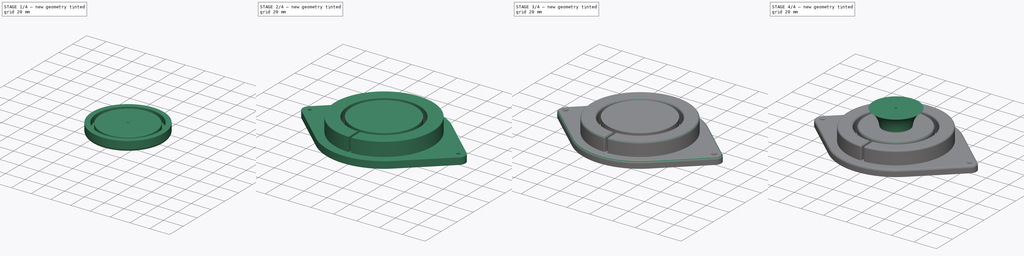
[diagram: build sequence overview — one tinted view per stage of 4, left to right]
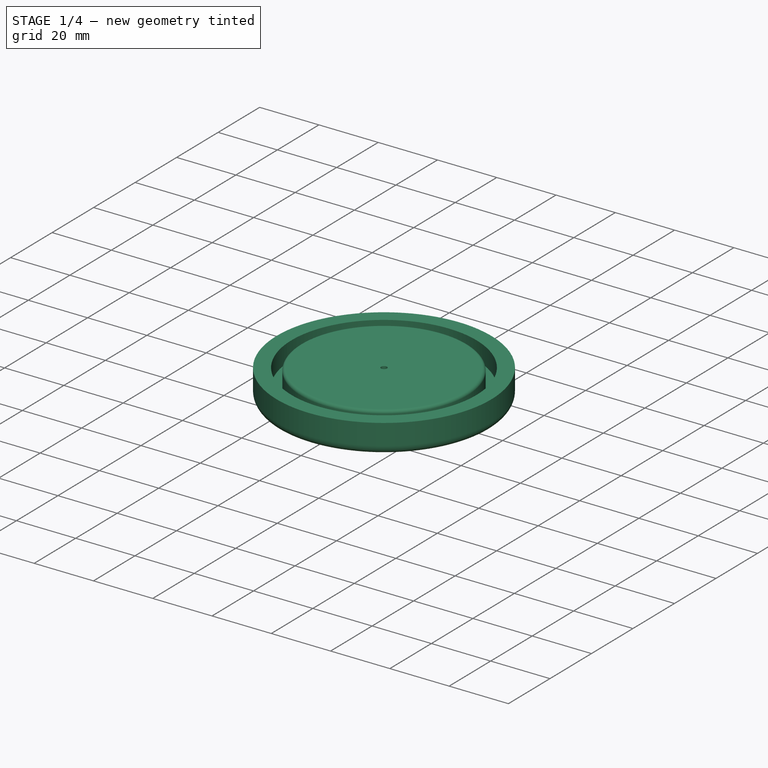
[diagram: stage 1 of 4 — iso view after this stage's code; geometry added in this stage tinted green]
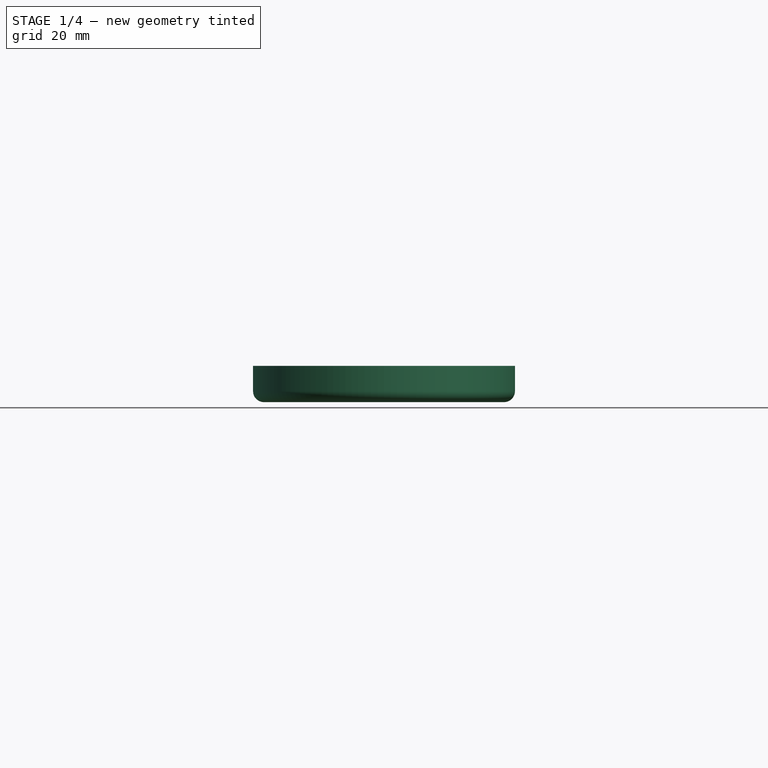
[diagram: stage 1 of 4 — front view after this stage's code; geometry added in this stage tinted green]
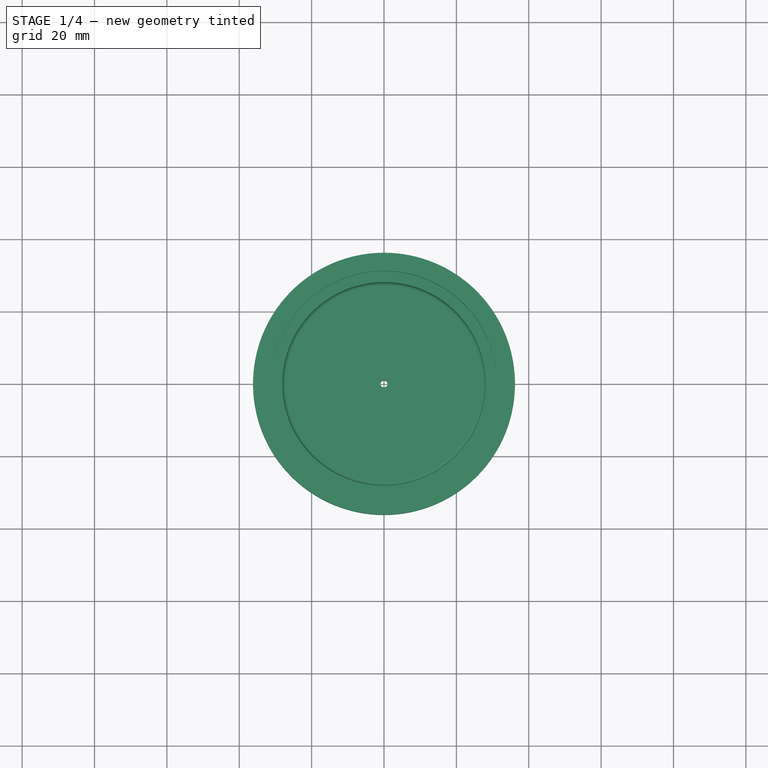
[diagram: stage 1 of 4 — top view after this stage's code; geometry added in this stage tinted green]
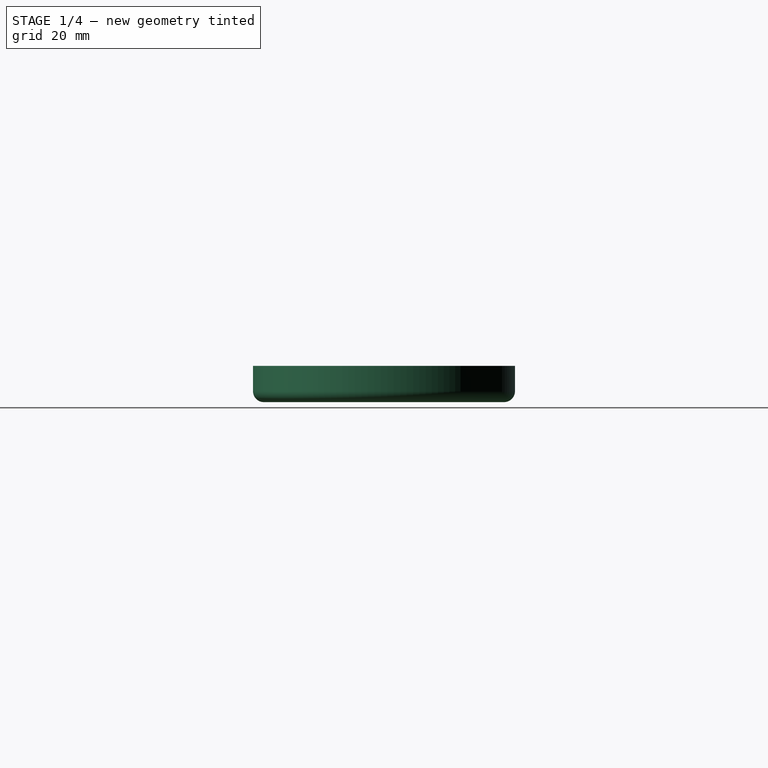
[diagram: stage 1 of 4 — right view after this stage's code; geometry added in this stage tinted green]
FCSTD DOCUMENT  (FreeCAD 1.0RUnknown)
Label: drsstc-I
License: All rights reserved
LicenseURL: https://en.wikipedia.org/wiki/All_rights_reserved
objects: Sketcher::SketchObject×5, PartDesign::Fillet×5, PartDesign::Body×3, PartDesign::Pad×2, PartDesign::Revolution×2, PartDesign::Hole×2, Spreadsheet::Sheet×1, PartDesign::Pocket×1, PartDesign::Chamfer×1
note: 52 computed .brp shape members not serialized (recipe doc carries the construction recipe); baked Part::Feature solids carry a one-line shape summary decoded from their .brp

FEATURE [Sketcher::SketchObject] Sketch003
  ArcFitTolerance = 1e-06
  AttachmentSupport = -> [YZ_Plane001]
  FullyConstrained = true
  MakeInternals = false
  MapMode = 5
  Placement = pos=(0,0,0) rot=(0.57735,0.57735,0.57735;2.0944rad)
  expr: Constraints[14] = Spreadsheet.secondary_thickness
  expr: Constraints[15] = Spreadsheet.secondary_inner_diameter / 2
  sketch-geometry (10):
    g0: LineSegment StartX=0 StartY=0 StartZ=0 EndX=33.2 EndY=3.268e-13 EndZ=0
    g1: LineSegment StartX=0 StartY=0 StartZ=0 EndX=0 EndY=10 EndZ=0
    g2: LineSegment StartX=0 StartY=10 StartZ=0 EndX=28.1 EndY=10 EndZ=0
    g3: LineSegment StartX=28.1 StartY=10 StartZ=0 EndX=28.1 EndY=4 EndZ=0
    g4: LineSegment StartX=28.1 StartY=4 StartZ=0 EndX=31.2 EndY=4 EndZ=0
    g5: LineSegment StartX=31.2 StartY=4 StartZ=0 EndX=31.2 EndY=10 EndZ=0
    g6: LineSegment StartX=31.2 StartY=10 StartZ=0 EndX=36.2 EndY=10 EndZ=0
    g7: LineSegment StartX=36.2 StartY=10 StartZ=0 EndX=36.2 EndY=3 EndZ=0
    g8: ArcOfCircle CenterX=33.2 CenterY=3 CenterZ=0 NormalX=0 NormalY=0 NormalZ=1 AngleXU=0 Radius=3 StartAngle=4.71239 EndAngle=6.28319
    g9: GeomPoint [constr] X=36.2 Y=0 Z=0
  constraints (27):
    c: Coincident(g0,g-1)
    c: PointOnObject(g9,g-1)
    c: Coincident(g1,g0)
    c: Vertical(g1)
    c: Coincident(g2,g1)
    c: Horizontal(g2)
    c: Coincident(g3,g2)
    c: Vertical(g3)
    c: Coincident(g4,g3)
    c: Horizontal(g4)
    c: Coincident(g5,g4)
    c: Vertical(g5)
    c: Horizontal(g6)
    c: Vertical(g7)
    c: Distance(g4,g4) = 3.1
    c: DistanceX(g2,g2) = 28.1
    c: Coincident(g5,g6)
    c: DistanceX(g6,g6) = 5
    c: Coincident(g6,g7)
    c: DistanceY(g1,g1) = 10
    c: DistanceY(g3,g3) = 6
    c: PointOnObject(g9,g0)
    c: PointOnObject(g9,g7)
    c: Tangent(g0,g8) = -1.5708
    c: Tangent(g7,g8) = 1.5708
    c: Radius(g8) = 3
    c: DistanceY(g9,g6) = 10
FEATURE [PartDesign::Revolution] Revolution
  Angle = 360
  Angle2 = 60
  Axis = (0,0,1)
  Base = (0,0,0)
  Placement = pos=(0,0,0) rot=(1,1,1;2.0944rad)
  Profile = -> Sketch003
  ReferenceAxis = -> Sketch003 [V_Axis]
  Refine = true
  Reversed = true
  Suppressed = false
  Type = 0
FEATURE [PartDesign::Hole] Hole
  BaseFeature = -> Revolution
  CustomThreadClearance = 0
  Depth = 208.125
  DepthType = 1
  Diameter = 2
  DrillForDepth = false
  DrillPoint = 1
  DrillPointAngle = 118
  HoleCutCountersinkAngle = 90
  HoleCutCustomValues = false
  HoleCutDepth = 0
  HoleCutDiameter = 6.1
  HoleCutType = 0
  ModelThread = false
  Placement = pos=(0,0,0) rot=(1,1,1;2.0944rad)
  Profile = -> Revolution [Face1]
  Refine = true
  Suppressed = false
  Tapered = false
  TaperedAngle = 90
  ThreadClass = 0
  ThreadDepth = 208.125
  ThreadDepthType = 0
  ThreadDirection = 0
  ThreadFit = 0
  ThreadSize = 0
  ThreadType = 0
  Threaded = false
  UseCustomThreadClearance = false
FEATURE [PartDesign::Body] Body  label="Base"
  AllowCompound = false
  Group = -> [Sketch,Pad,Sketch001,Pad001,Sketch002,Pocket,Chamfer,Fillet,Fillet001,Fillet002,Fillet003]
  Origin = -> Origin
  Tip = -> Fillet003
FEATURE [PartDesign::Fillet] Fillet004
  Base = -> Hole [Edge9]
  BaseFeature = -> Hole
  Placement = pos=(0,0,0) rot=(1,1,1;2.0944rad)
  Radius = 1
  Refine = true
  SupportTransform = false
  Suppressed = false
  UseAllEdges = false
FEATURE [PartDesign::Body] Body001  label="Cap"
  AllowCompound = false
  Group = -> [Sketch003,Revolution,Hole,Fillet004]
  Origin = -> Origin001
  Tip = -> Fillet004
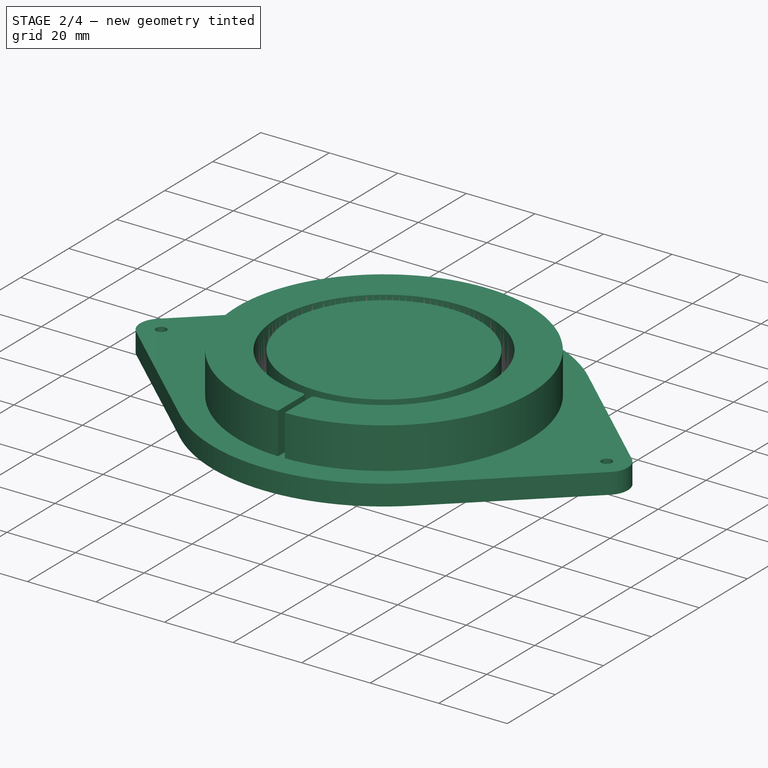
[diagram: stage 2 of 4 — iso view after this stage's code; geometry added in this stage tinted green]
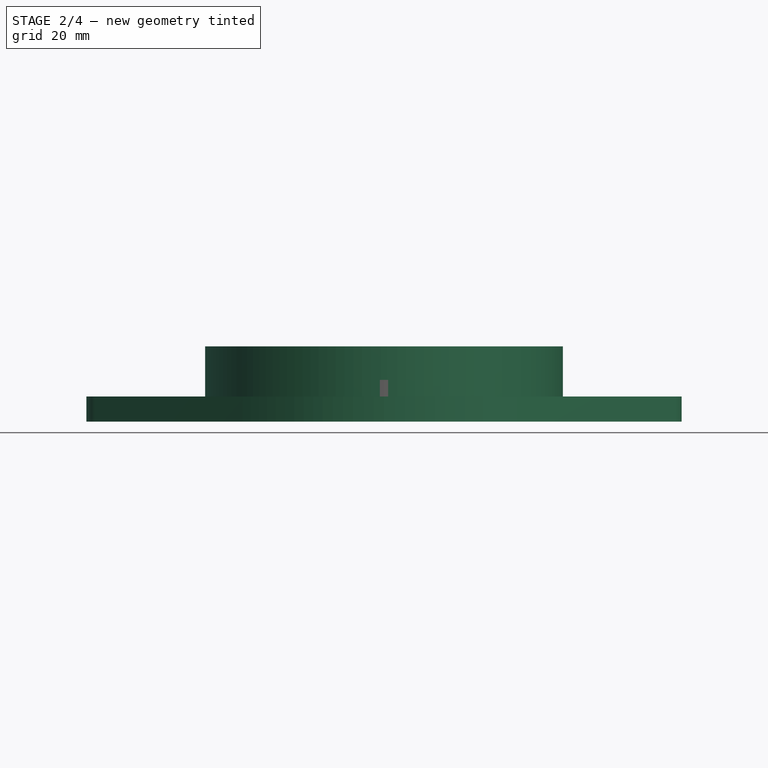
[diagram: stage 2 of 4 — front view after this stage's code; geometry added in this stage tinted green]
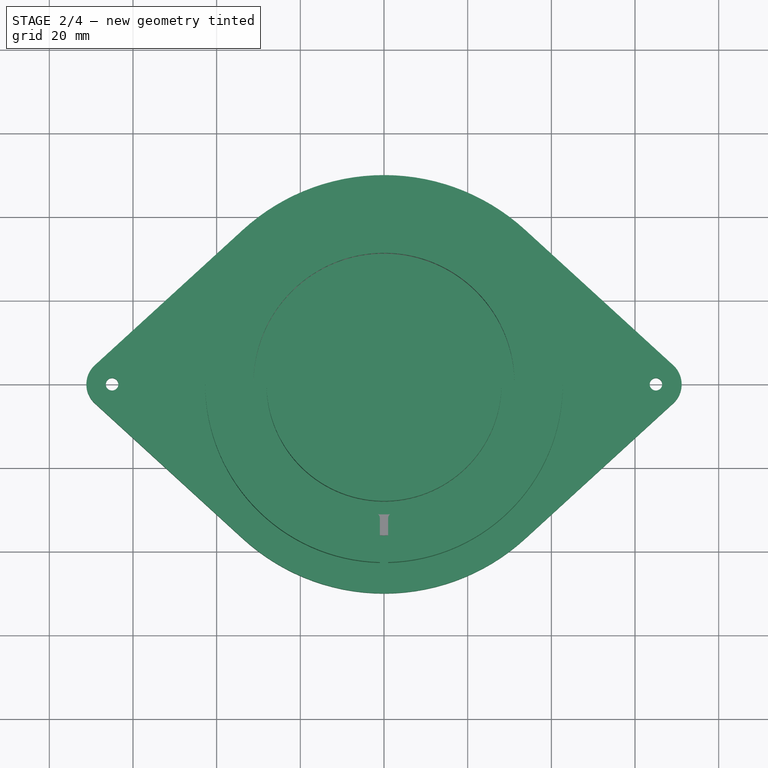
[diagram: stage 2 of 4 — top view after this stage's code; geometry added in this stage tinted green]
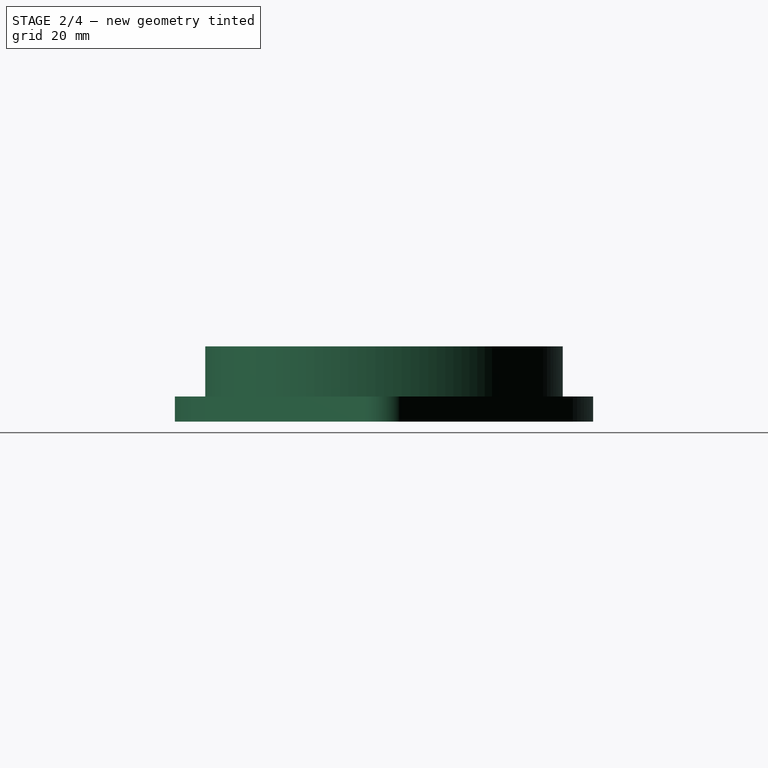
[diagram: stage 2 of 4 — right view after this stage's code; geometry added in this stage tinted green]
FEATURE [Sketcher::SketchObject] Sketch
  ArcFitTolerance = 1e-06
  AttachmentSupport = -> [XY_Plane]
  FullyConstrained = true
  MakeInternals = false
  MapMode = 5
  expr: Constraints[15] = Spreadsheet.base_diameter
  expr: Constraints[8] = Spreadsheet.base_center_to_edge
  sketch-geometry (10):
    g0: ArcOfCircle CenterX=0 CenterY=0 CenterZ=0 NormalX=0 NormalY=0 NormalZ=1 AngleXU=0 Radius=50 StartAngle=3.97174 EndAngle=5.45304
    g1: LineSegment StartX=69.1431 StartY=4.5315 StartZ=0 EndX=33.7385 EndY=36.9014 EndZ=0
    g2: LineSegment StartX=69.1431 StartY=-4.5315 StartZ=0 EndX=33.7385 EndY=-36.9014 EndZ=0
    g3: LineSegment StartX=-69.1431 StartY=4.5315 StartZ=0 EndX=-33.7385 EndY=36.9014 EndZ=0
    g4: LineSegment StartX=-69.1431 StartY=-4.5315 StartZ=0 EndX=-33.7385 EndY=-36.9014 EndZ=0
    g5: ArcOfCircle CenterX=-65 CenterY=3.2e-15 CenterZ=0 NormalX=0 NormalY=0 NormalZ=1 AngleXU=0 Radius=6.14 StartAngle=2.31145 EndAngle=3.97174
    g6: ArcOfCircle CenterX=65 CenterY=0 CenterZ=0 NormalX=0 NormalY=0 NormalZ=1 AngleXU=0 Radius=6.14 StartAngle=5.45304 EndAngle=7.11333
    g7: ArcOfCircle CenterX=0 CenterY=0 CenterZ=0 NormalX=0 NormalY=0 NormalZ=1 AngleXU=0 Radius=50 StartAngle=0.830144 EndAngle=2.31145
    g8: Circle CenterX=-65 CenterY=3.2e-15 CenterZ=0 NormalX=0 NormalY=0 NormalZ=1 AngleXU=0 Radius=1.5
    g9: Circle CenterX=65 CenterY=0 CenterZ=0 NormalX=0 NormalY=0 NormalZ=1 AngleXU=0 Radius=1.5
  constraints (21):
    c: Symmetric(g1,g2,g-1)
    c: Coincident(g0,g-1)
    c: Tangent(g5,g3) = 1.5708
    c: Tangent(g5,g4) = -1.5708
    c: Coincident(g6,g1)
    c: Tangent(g6,g2) = 1.5708
    c: Equal(g5,g6)
    c: Symmetric(g6,g5,g-2)
    c: DistanceX(g-1,g6) = 65
    c: Radius(g6) = 6.14
    c: Tangent(g0,g4) = -1.5708
    c: Equal(g0,g7)
    c: Tangent(g0,g2) = 1.5708
    c: Tangent(g7,g1) = -1.5708
    c: Coincident(g0,g7)
    c: Diameter(g7) = 100
    c: Tangent(g7,g3) = 1.5708
    c: Coincident(g8,g5)
    c: Coincident(g9,g6)
    c: Diameter(g8) = 3
    c: Equal(g9,g8)
FEATURE [PartDesign::Pad] Pad
  Direction = (0,0,1)
  Length = 6
  Length2 = 10
  Profile = -> Sketch
  ReferenceAxis = -> Sketch [N_Axis]
  Refine = true
  Suppressed = false
  Type = 0
FEATURE [Sketcher::SketchObject] Sketch001
  ArcFitTolerance = 1e-06
  AttachmentSupport = -> [Pad]
  FullyConstrained = true
  MakeInternals = false
  MapMode = 5
  Placement = pos=(0,0,6) rot=(0,0,1;0rad)
  expr: Constraints[1] = Spreadsheet.primary_inner_diameter
  sketch-geometry (1):
    g0: Circle CenterX=0 CenterY=0 CenterZ=0 NormalX=0 NormalY=0 NormalZ=1 AngleXU=0 Radius=42.75
  constraints (2):
    c: Coincident(g0,g-1)
    c: Diameter(g0) = 85.5
FEATURE [PartDesign::Pad] Pad001
  BaseFeature = -> Pad
  Direction = (0,0,1)
  Length = 12
  Length2 = 10
  Profile = -> Sketch001
  ReferenceAxis = -> Sketch001 [N_Axis]
  Refine = true
  Suppressed = false
  Type = 0
  expr: Length = Spreadsheet.secondary_bottom_distance
FEATURE [Spreadsheet::Sheet] Spreadsheet
  cells = A1='Secondary thickness; B1(secondary_thickness)=3.1; A2='Secondary inner diameter; B2(secondary_inner_diameter)=56.2; A3='Secondary outer diameter; B3(secondary_outer_diameter)=62.4; A4='Secondary bottom distance; B4(secondary_bottom_distance)=12; A5='Secondary toroid support length; B5(secondary_toroid_support_length)=32; A7=' Primary outer diameter; B7(primary_outer_diameter)=90; A8='Primary innter diameter; B8(primary_inner_diameter)=85.5; A9='Primary thickness; B9(primary_thickness)=2.3; A11='Base diameter; B11(base_diameter)==primary_outer_diameter + 10; A12='Base center to edge; B12(base_center_to_edge)==primary_outer_diameter / 2 + 20
FEATURE [Sketcher::SketchObject] Sketch002
  ArcFitTolerance = 1e-06
  AttachmentSupport = -> [Pad001]
  FullyConstrained = true
  MakeInternals = false
  MapMode = 5
  Placement = pos=(0,0,18) rot=(0,0,1;0rad)
  expr: Constraints[2] = Spreadsheet.secondary_outer_diameter
  expr: Constraints[3] = Spreadsheet.secondary_inner_diameter
  sketch-geometry (7):
    g0: ArcOfCircle CenterX=0 CenterY=0 CenterZ=0 NormalX=0 NormalY=0 NormalZ=1 AngleXU=0 Radius=31.2 StartAngle=4.77454 EndAngle=10.9334
    g1: Circle CenterX=0 CenterY=0 CenterZ=0 NormalX=0 NormalY=0 NormalZ=1 AngleXU=0 Radius=28.1
    g2: LineSegment StartX=-1 StartY=-32.1378 StartZ=0 EndX=-1 EndY=-43.1378 EndZ=0
    g3: LineSegment StartX=1 StartY=-43.1378 StartZ=0 EndX=1 EndY=-32.1378 EndZ=0
    g4: LineSegment StartX=-1 StartY=-43.1378 StartZ=0 EndX=1 EndY=-43.1378 EndZ=0
    g5: ArcOfCircle CenterX=2 CenterY=-32.1378 CenterZ=0 NormalX=0 NormalY=0 NormalZ=1 AngleXU=0 Radius=1 StartAngle=1.63295 EndAngle=3.14159
    g6: ArcOfCircle CenterX=-2 CenterY=-32.1378 CenterZ=0 NormalX=0 NormalY=0 NormalZ=1 AngleXU=0 Radius=1 StartAngle=0 EndAngle=1.50864
  constraints (17):
    c: Coincident(g0,g-1)
    c: Coincident(g1,g0)
    c: Diameter(g0) = 62.4
    c: Diameter(g1) = 56.2
    c: Vertical(g2)
    c: Vertical(g3)
    c: Symmetric(g3,g2,g-2)
    c: Distance(g3,g2) = 2
    c: Coincident(g4,g2)
    c: Coincident(g4,g3)
    c: Tangent(g0,g5) = 1.5708
    c: Tangent(g3,g5) = 1.5708
    c: Tangent(g0,g6) = 1.5708
    c: Tangent(g2,g6) = 1.5708
    c: Radius(g6) = 1
    c: Equal(g5,g6)
    c: DistanceY(g2,g2) = 11
FEATURE [PartDesign::Pocket] Pocket
  BaseFeature = -> Pad001
  Direction = (0,0,-1)
  Length = 12
  Length2 = 5
  Profile = -> Sketch002
  ReferenceAxis = -> Sketch002 [N_Axis]
  Refine = true
  Suppressed = false
  Type = 0
  expr: Length = Spreadsheet.secondary_bottom_distance
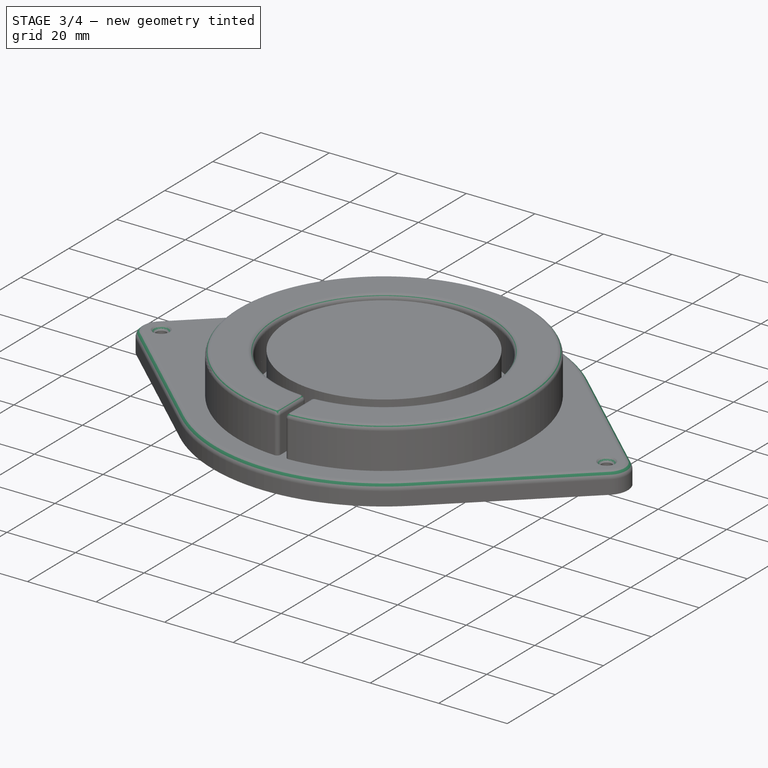
[diagram: stage 3 of 4 — iso view after this stage's code; geometry added in this stage tinted green]
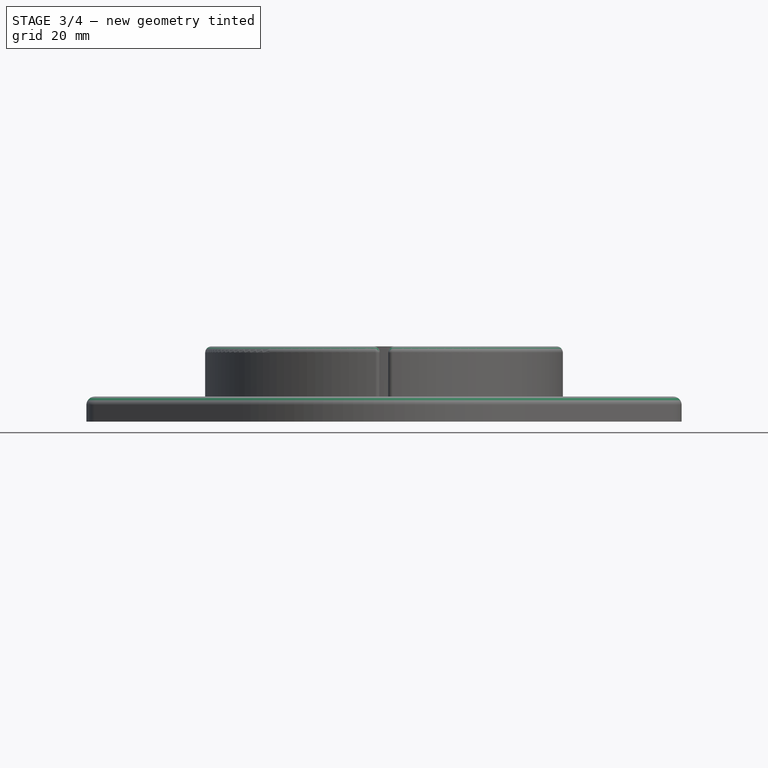
[diagram: stage 3 of 4 — front view after this stage's code; geometry added in this stage tinted green]
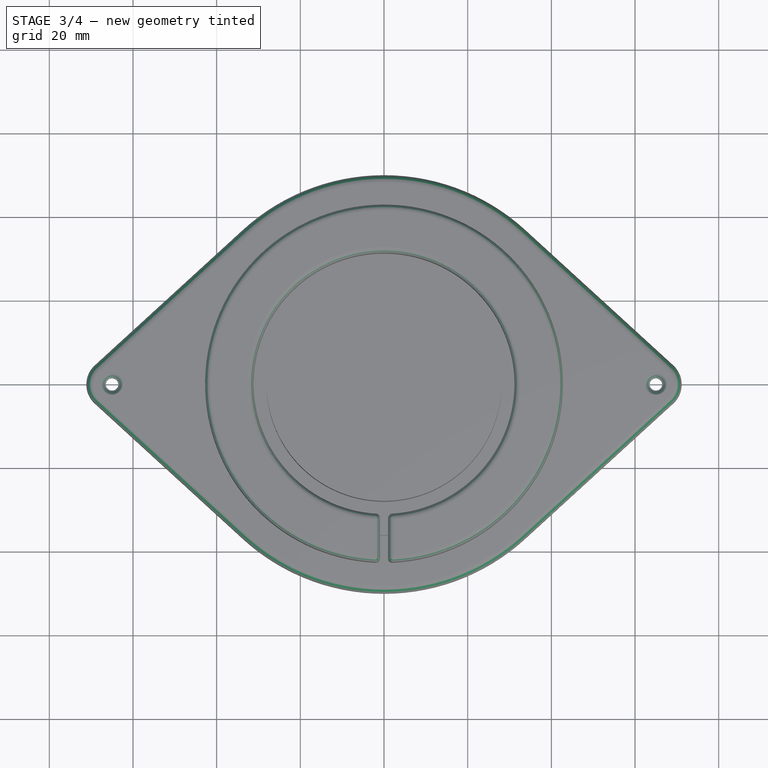
[diagram: stage 3 of 4 — top view after this stage's code; geometry added in this stage tinted green]
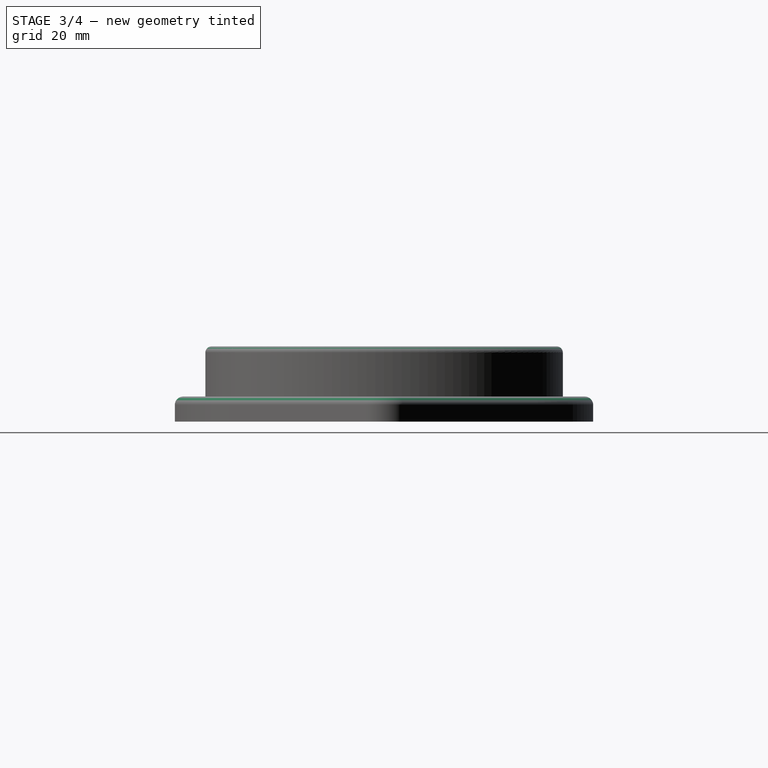
[diagram: stage 3 of 4 — right view after this stage's code; geometry added in this stage tinted green]
FEATURE [PartDesign::Body] Body002  label="Toroid Holder"
  AllowCompound = false
  Group = -> [Sketch004,Revolution001,Hole001]
  Origin = -> Origin002
  Tip = -> Hole001
FEATURE [PartDesign::Chamfer] Chamfer
  Angle = 45
  Base = -> Pocket [Edge30,Edge28]
  BaseFeature = -> Pocket
  ChamferType = 0
  FlipDirection = false
  Refine = true
  Size = 1
  Size2 = 1
  SupportTransform = false
  Suppressed = false
  UseAllEdges = false
FEATURE [PartDesign::Fillet] Fillet
  Base = -> Chamfer [Edge21,Edge20,Edge19,Edge22,Edge23,Edge16,Edge17,Edge18]
  BaseFeature = -> Chamfer
  Radius = 2
  Refine = true
  SupportTransform = false
  Suppressed = false
  UseAllEdges = false
FEATURE [PartDesign::Fillet] Fillet001
  Base = -> Fillet [Edge37,Edge40]
  BaseFeature = -> Fillet
  Radius = 1
  Refine = true
  SupportTransform = false
  Suppressed = false
  UseAllEdges = false
FEATURE [PartDesign::Fillet] Fillet002
  Base = -> Fillet001 [Edge21,Edge23]
  BaseFeature = -> Fillet001
  Radius = 1.5
  Refine = true
  SupportTransform = false
  Suppressed = false
  UseAllEdges = false
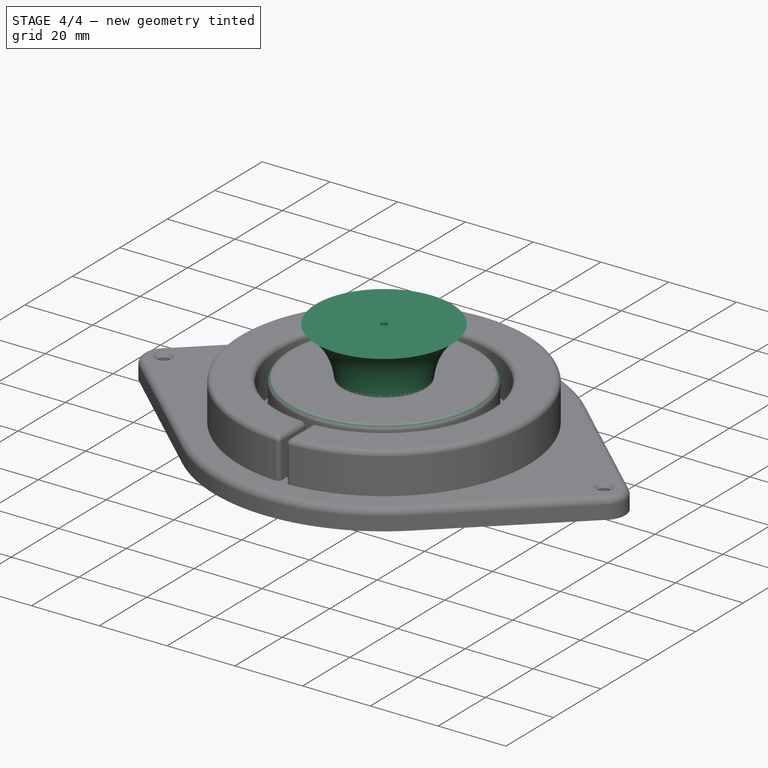
[diagram: stage 4 of 4 — iso view after this stage's code; geometry added in this stage tinted green]
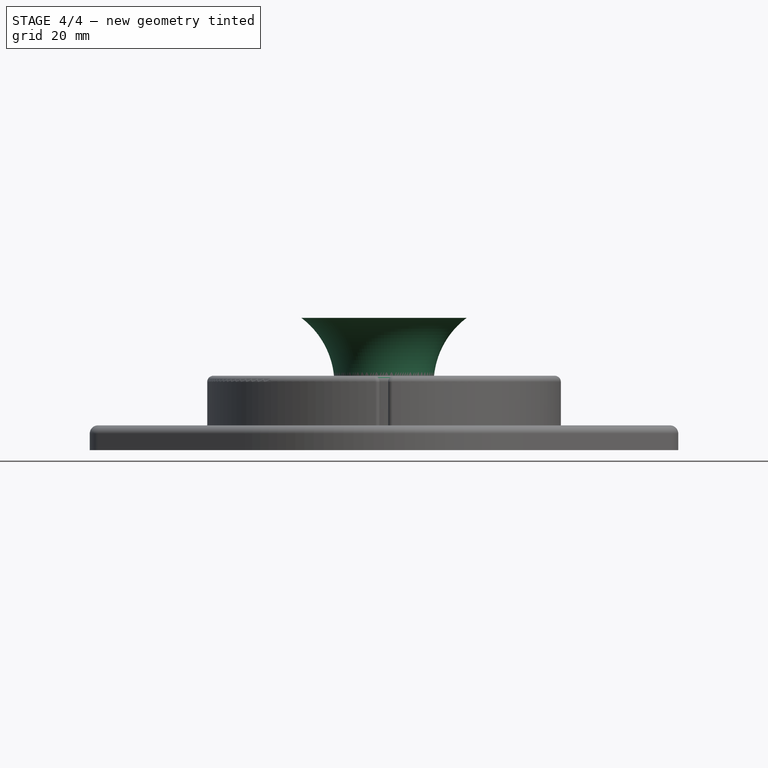
[diagram: stage 4 of 4 — front view after this stage's code; geometry added in this stage tinted green]
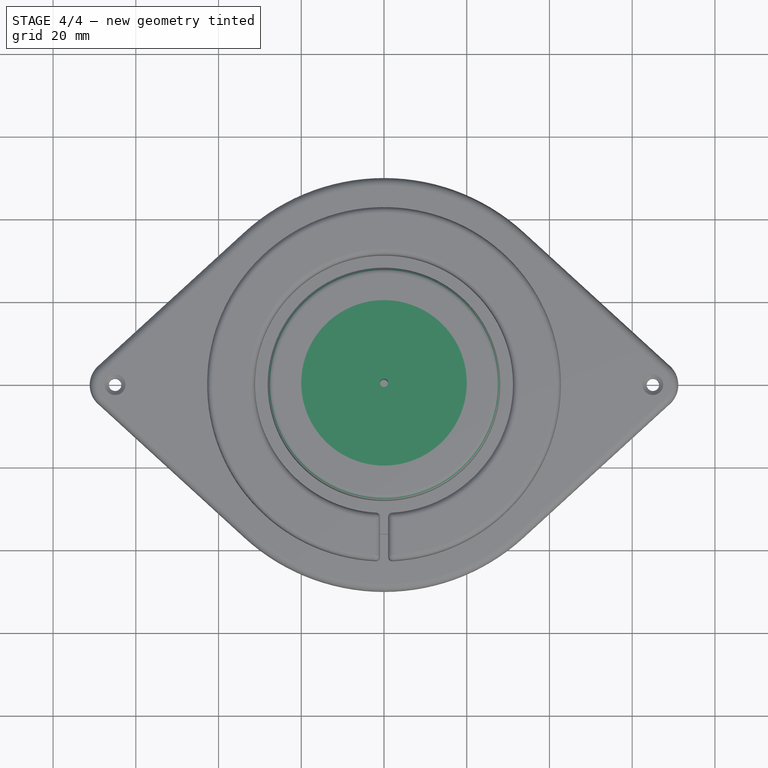
[diagram: stage 4 of 4 — top view after this stage's code; geometry added in this stage tinted green]
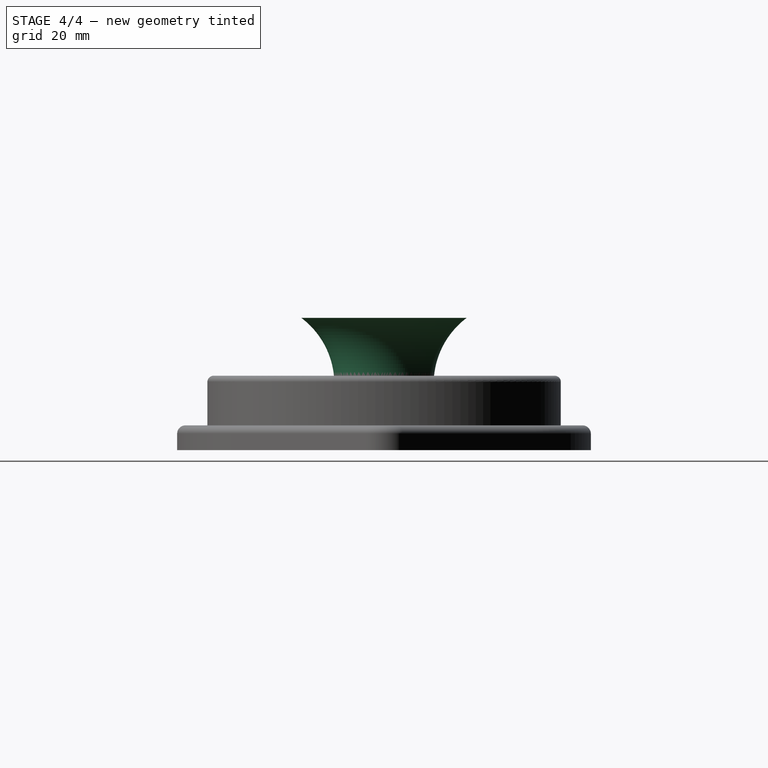
[diagram: stage 4 of 4 — right view after this stage's code; geometry added in this stage tinted green]
FEATURE [Sketcher::SketchObject] Sketch004
  ArcFitTolerance = 1e-06
  AttachmentSupport = -> [YZ_Plane002]
  FullyConstrained = true
  MakeInternals = false
  MapMode = 5
  Placement = pos=(0,0,0) rot=(0.57735,0.57735,0.57735;2.0944rad)
  expr: Constraints[9] = Spreadsheet.secondary_toroid_support_length
  sketch-geometry (4):
    g0: LineSegment StartX=0 StartY=0 StartZ=0 EndX=20 EndY=9.805e-13 EndZ=0
    g1: LineSegment StartX=0 StartY=0 StartZ=0 EndX=0 EndY=32 EndZ=0
    g2: LineSegment StartX=0 StartY=32 StartZ=0 EndX=20 EndY=32 EndZ=0
    g3: ArcOfCircle CenterX=32 CenterY=16 CenterZ=0 NormalX=0 NormalY=0 NormalZ=1 AngleXU=0 Radius=20 StartAngle=2.2143 EndAngle=4.06889
  constraints (12):
    c: Coincident(g0,g-1)
    c: PointOnObject(g0,g-1)
    c: Coincident(g1,g0)
    c: PointOnObject(g1,g-2)
    c: Coincident(g2,g1)
    c: Horizontal(g2)
    c: Coincident(g3,g2)
    c: Coincident(g3,g0)
    c: Equal(g2,g0)
    c: DistanceY(g1,g1) = 32
    c: DistanceX(g2,g2) = 20
    c: Radius(g3) = 20
FEATURE [PartDesign::Revolution] Revolution001
  Angle = 360
  Angle2 = 60
  Axis = (0,0,1)
  Base = (0,0,0)
  Placement = pos=(0,0,0) rot=(1,1,1;2.0944rad)
  Profile = -> Sketch004
  ReferenceAxis = -> Sketch004 [V_Axis]
  Refine = true
  Reversed = true
  Suppressed = false
  Type = 0
FEATURE [PartDesign::Hole] Hole001
  BaseFeature = -> Revolution001
  CustomThreadClearance = 0
  Depth = 131.284
  DepthType = 1
  Diameter = 2
  DrillForDepth = false
  DrillPoint = 1
  DrillPointAngle = 118
  HoleCutCountersinkAngle = 90
  HoleCutCustomValues = false
  HoleCutDepth = 0
  HoleCutDiameter = 6.1
  HoleCutType = 0
  ModelThread = false
  Placement = pos=(0,0,0) rot=(1,1,1;2.0944rad)
  Profile = -> Revolution001 [Face3]
  Refine = true
  Suppressed = false
  Tapered = false
  TaperedAngle = 90
  ThreadClass = 0
  ThreadDepth = 131.284
  ThreadDepthType = 0
  ThreadDirection = 0
  ThreadFit = 0
  ThreadSize = 0
  ThreadType = 0
  Threaded = false
  UseCustomThreadClearance = false
FEATURE [PartDesign::Fillet] Fillet003
  Base = -> Fillet002 [Edge67]
  BaseFeature = -> Fillet002
  Radius = 1.5
  Refine = true
  SupportTransform = false
  Suppressed = false
  UseAllEdges = false
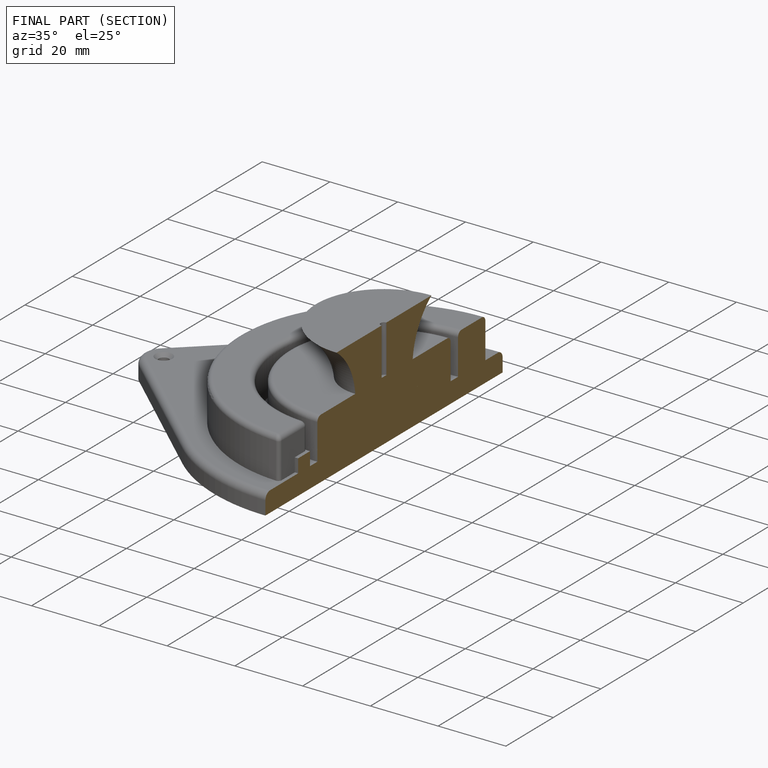
[diagram: finished part — half-section view (interior)]
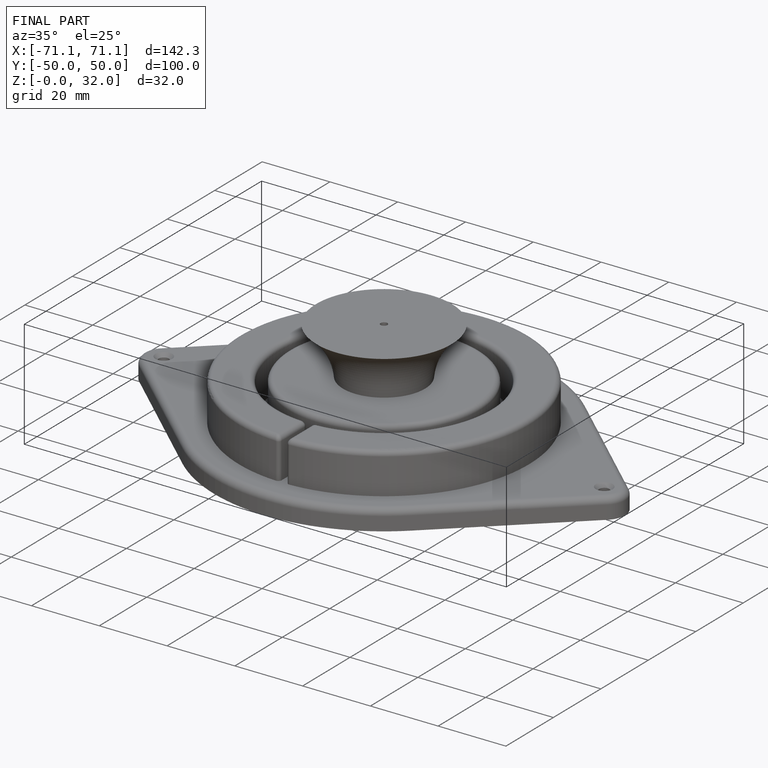
[diagram: finished part — iso view with bounding-box wireframe]
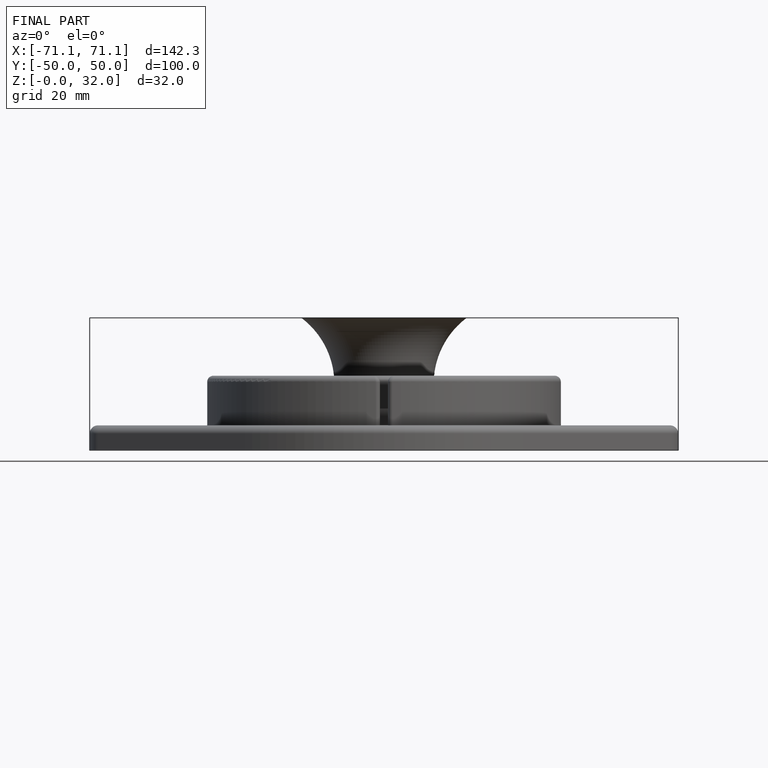
[diagram: finished part — front view with bounding-box wireframe]
